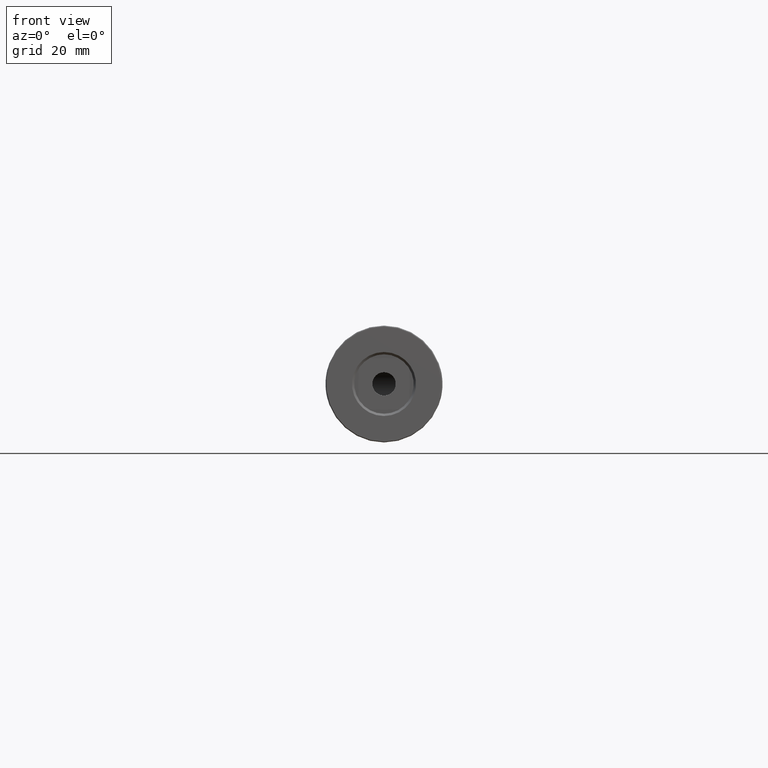
[diagram: clean part render]
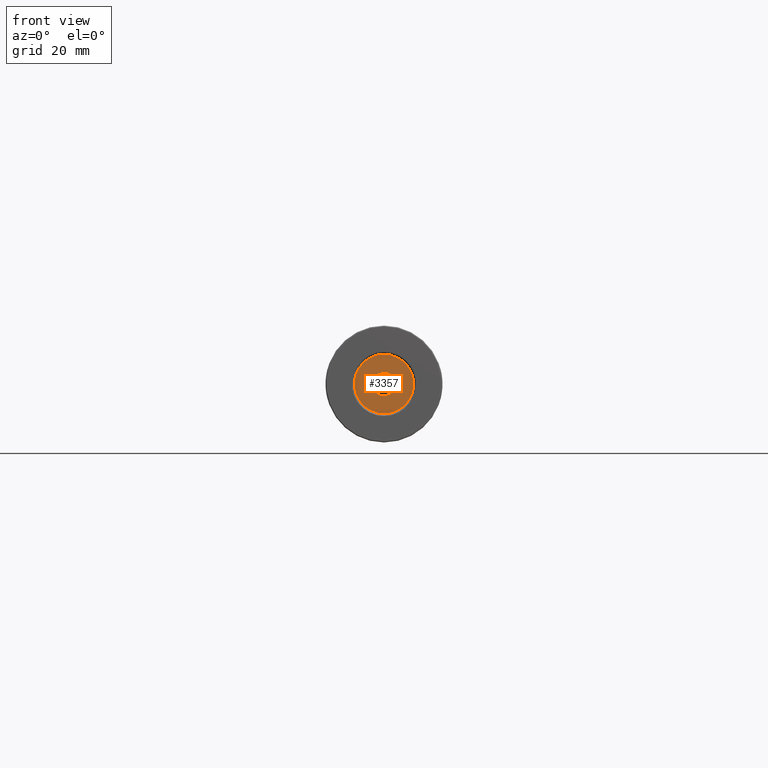
[diagram: same view with one face highlighted and labeled with its STEP entity id]
A machine part, front view. The second image highlights one B-rep face of the part: STEP entity #3357.
In plain terms, the highlighted planar face has unit normal (0, -1, 0).
Its self-contained STEP definition (entity closure, byte-faithful):
#5 = CARTESIAN_POINT ( 'NONE',  ( -22.50520183104453409, -74.30174781523061256, 50.00000000000000000 ) ) ;
#56 = CIRCLE ( 'NONE', #2684, 2.499999999999995115 ) ;
#76 = DIRECTION ( 'NONE',  ( 0.0000000000000000000, 0.0000000000000000000, 1.000000000000000000 ) ) ;
#119 = DIRECTION ( 'NONE',  ( 0.0000000000000000000, -1.000000000000000000, 0.0000000000000000000 ) ) ;
#289 = VERTEX_POINT ( 'NONE', #988 ) ;
#391 = CARTESIAN_POINT ( 'NONE',  ( -22.50520183104453409, -74.30174781523061256, 56.35000000000000142 ) ) ;
#462 = PLANE ( 'NONE',  #1346 ) ;
#478 = DIRECTION ( 'NONE',  ( 0.0000000000000000000, 0.0000000000000000000, 1.000000000000000000 ) ) ;
#524 = CARTESIAN_POINT ( 'NONE',  ( -22.50520183104453409, -74.30174781523061256, 50.00000000000000000 ) ) ;
#660 = EDGE_CURVE ( 'NONE', #289, #1504, #56, .T. ) ;
#664 = AXIS2_PLACEMENT_3D ( 'NONE', #524, #2596, #1560 ) ;
#770 = CIRCLE ( 'NONE', #1049, 6.350000000000001421 ) ;
#830 = DIRECTION ( 'NONE',  ( -0.0000000000000000000, 1.000000000000000000, -0.0000000000000000000 ) ) ;
#876 = CARTESIAN_POINT ( 'NONE',  ( -22.50520183104453409, -74.30174781523061256, 43.64999999999999858 ) ) ;
#959 = DIRECTION ( 'NONE',  ( 0.0000000000000000000, 0.0000000000000000000, -1.000000000000000000 ) ) ;
#971 = ORIENTED_EDGE ( 'NONE', *, *, #1296, .F. ) ;
#988 = CARTESIAN_POINT ( 'NONE',  ( -22.50520183104453409, -74.30174781523061256, 52.50000000000000000 ) ) ;
#1049 = AXIS2_PLACEMENT_3D ( 'NONE', #5, #2352, #478 ) ;
#1161 = CIRCLE ( 'NONE', #664, 2.499999999999995115 ) ;
#1175 = EDGE_CURVE ( 'NONE', #3417, #1520, #770, .T. ) ;
#1296 = EDGE_CURVE ( 'NONE', #1520, #3417, #3339, .T. ) ;
#1346 = AXIS2_PLACEMENT_3D ( 'NONE', #2666, #3166, #3200 ) ;
#1504 = VERTEX_POINT ( 'NONE', #3273 ) ;
#1520 = VERTEX_POINT ( 'NONE', #876 ) ;
#1535 = EDGE_LOOP ( 'NONE', ( #971, #1859 ) ) ;
#1560 = DIRECTION ( 'NONE',  ( 0.0000000000000000000, 0.0000000000000000000, -1.000000000000000000 ) ) ;
#1595 = FACE_OUTER_BOUND ( 'NONE', #1535, .T. ) ;
#1615 = ORIENTED_EDGE ( 'NONE', *, *, #2774, .F. ) ;
#1859 = ORIENTED_EDGE ( 'NONE', *, *, #1175, .F. ) ;
#2057 = AXIS2_PLACEMENT_3D ( 'NONE', #3224, #830, #76 ) ;
#2251 = CARTESIAN_POINT ( 'NONE',  ( -22.50520183104453409, -74.30174781523061256, 50.00000000000000000 ) ) ;
#2309 = EDGE_LOOP ( 'NONE', ( #1615, #3086 ) ) ;
#2352 = DIRECTION ( 'NONE',  ( -0.0000000000000000000, 1.000000000000000000, -0.0000000000000000000 ) ) ;
#2596 = DIRECTION ( 'NONE',  ( 0.0000000000000000000, -1.000000000000000000, 0.0000000000000000000 ) ) ;
#2598 = FACE_BOUND ( 'NONE', #2309, .T. ) ;
#2666 = CARTESIAN_POINT ( 'NONE',  ( -22.50520183104453409, -74.30174781523061256, 50.00000000000000000 ) ) ;
#2684 = AXIS2_PLACEMENT_3D ( 'NONE', #2251, #119, #959 ) ;
#2774 = EDGE_CURVE ( 'NONE', #1504, #289, #1161, .T. ) ;
#3086 = ORIENTED_EDGE ( 'NONE', *, *, #660, .F. ) ;
#3166 = DIRECTION ( 'NONE',  ( 0.0000000000000000000, -1.000000000000000000, 0.0000000000000000000 ) ) ;
#3200 = DIRECTION ( 'NONE',  ( 0.0000000000000000000, 0.0000000000000000000, 1.000000000000000000 ) ) ;
#3224 = CARTESIAN_POINT ( 'NONE',  ( -22.50520183104453409, -74.30174781523061256, 50.00000000000000000 ) ) ;
#3273 = CARTESIAN_POINT ( 'NONE',  ( -22.50520183104453409, -74.30174781523061256, 47.50000000000000711 ) ) ;
#3339 = CIRCLE ( 'NONE', #2057, 6.350000000000001421 ) ;
#3357 = ADVANCED_FACE ( 'NONE', ( #2598, #1595 ), #462, .T. ) ;
#3417 = VERTEX_POINT ( 'NONE', #391 ) ;